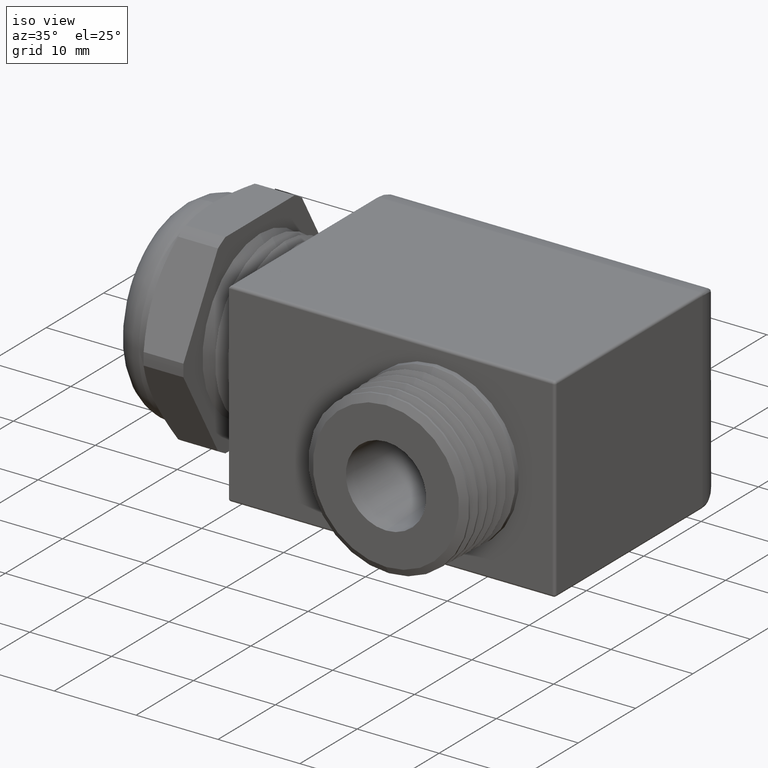
[diagram: clean part render]
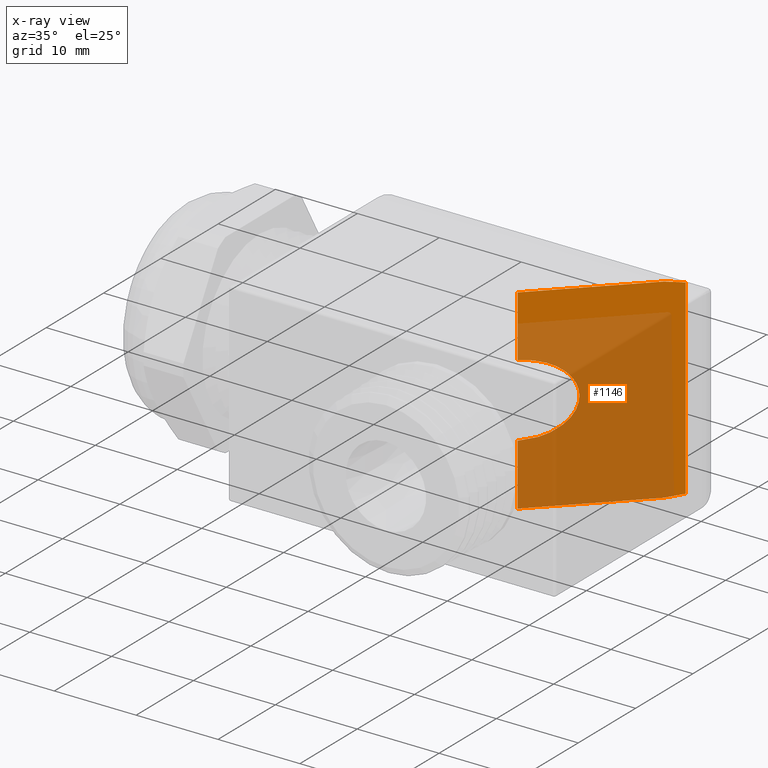
[diagram: x-ray — body ghosted, one internal face saturated and labeled with its STEP entity id]
A machine part, iso view, then the same camera in x-ray: the body is ghosted and one INTERNAL B-rep face — a face not visible from any outside direction — is saturated and labeled: STEP entity #1146.
In plain terms, the highlighted planar face has unit normal (-0.7071, 0.7071, 0).
Its self-contained STEP definition (entity closure, byte-faithful):
#1132 = ORIENTED_EDGE ( 'NONE', *, *, #1133, .T. ) ;
#1133 = EDGE_CURVE ( 'NONE', #1311, #1134, #3577, .T. ) ;
#1134 = VERTEX_POINT ( 'NONE', #3706 ) ;
#1135 = ORIENTED_EDGE ( 'NONE', *, *, #1136, .F. ) ;
#1136 = EDGE_CURVE ( 'NONE', #1137, #1134, #3586, .T. ) ;
#1137 = VERTEX_POINT ( 'NONE', #3588 ) ;
#1138 = ORIENTED_EDGE ( 'NONE', *, *, #1139, .F. ) ;
#1139 = EDGE_CURVE ( 'NONE', #1140, #1137, #3587, .T. ) ;
#1140 = VERTEX_POINT ( 'NONE', #3602 ) ;
#1141 = ORIENTED_EDGE ( 'NONE', *, *, #1142, .F. ) ;
#1142 = EDGE_CURVE ( 'NONE', #1143, #1140, #3599, .T. ) ;
#1143 = VERTEX_POINT ( 'NONE', #3601 ) ;
#1144 = ORIENTED_EDGE ( 'NONE', *, *, #1223, .T. ) ;
#1146 = ADVANCED_FACE ( 'NONE', ( #3590 ), #3589, .T. ) ;
#1147 = EDGE_LOOP ( 'NONE', ( #1148, #1151, #1153, #1132, #1135, #1138, #1141, #1144 ) ) ;
#1148 = ORIENTED_EDGE ( 'NONE', *, *, #1149, .T. ) ;
#1149 = EDGE_CURVE ( 'NONE', #1150, #1196, #3576, .T. ) ;
#1150 = VERTEX_POINT ( 'NONE', #3568 ) ;
#1151 = ORIENTED_EDGE ( 'NONE', *, *, #1152, .T. ) ;
#1152 = EDGE_CURVE ( 'NONE', #1196, #1383, #3566, .T. ) ;
#1153 = ORIENTED_EDGE ( 'NONE', *, *, #1310, .T. ) ;
#1196 = VERTEX_POINT ( 'NONE', #3632 ) ;
#1223 = EDGE_CURVE ( 'NONE', #1143, #1150, #3611, .T. ) ;
#1310 = EDGE_CURVE ( 'NONE', #1383, #1311, #3908, .T. ) ;
#1311 = VERTEX_POINT ( 'NONE', #3904 ) ;
#1383 = VERTEX_POINT ( 'NONE', #4032 ) ;
#3527 = VECTOR ( 'NONE', #3529, 39.37007874015748100 ) ;
#3529 = DIRECTION ( 'NONE',  ( -0.7071067811865512400, -0.7071067811865438000, 0.0000000000000000000 ) ) ;
#3562 = CARTESIAN_POINT ( 'NONE',  ( 0.9679999999999952000, 1.222686989034449200E-017, 0.1749999999999999900 ) ) ;
#3563 = CARTESIAN_POINT ( 'NONE',  ( 1.317999999999998300, 0.3499999999999997000, 0.1749999999999999100 ) ) ;
#3564 = CARTESIAN_POINT ( 'NONE',  ( 1.317999999999998700, 0.3499999999999998100, -0.1749999999999997100 ) ) ;
#3565 = CARTESIAN_POINT ( 'NONE',  ( 0.9679999999999952000, 0.0000000000000000000, -0.1749999999999999900 ) ) ;
#3566 =( BOUNDED_CURVE ( )  B_SPLINE_CURVE ( 3, ( #3565, #3564, #3563, #3562 ),
 .UNSPECIFIED., .F., .T. ) 
 B_SPLINE_CURVE_WITH_KNOTS ( ( 4, 4 ),
 ( 1.570796326794897400, 4.712388980384689700 ),
 .UNSPECIFIED. ) 
 CURVE ( )  GEOMETRIC_REPRESENTATION_ITEM ( )  RATIONAL_B_SPLINE_CURVE ( ( 1.000000000000000000, 0.3333333333333335900, 0.3333333333333335900, 1.000000000000000000 ) ) 
 REPRESENTATION_ITEM ( '' )  );
#3568 = CARTESIAN_POINT ( 'NONE',  ( 0.9679999999999952000, -6.137788176939977500E-018, -0.4700000000000000300 ) ) ;
#3569 = DIRECTION ( 'NONE',  ( 0.0000000000000000000, 0.0000000000000000000, 1.000000000000000000 ) ) ;
#3570 = VECTOR ( 'NONE', #3569, 39.37007874015748100 ) ;
#3571 = CARTESIAN_POINT ( 'NONE',  ( 0.9679999999999952000, 0.0000000000000000000, -0.4703937007874016700 ) ) ;
#3572 = DIRECTION ( 'NONE',  ( -0.7071067811865512400, -0.7071067811865438000, 0.0000000000000000000 ) ) ;
#3573 = DIRECTION ( 'NONE',  ( -0.7071067811865438000, 0.7071067811865512400, 0.0000000000000000000 ) ) ;
#3574 = CARTESIAN_POINT ( 'NONE',  ( 1.443555555555555700, 0.4755555555555555100, -0.4703937007874016700 ) ) ;
#3575 = AXIS2_PLACEMENT_3D ( 'NONE', #3574, #3573, #3572 ) ;
#3576 = LINE ( 'NONE', #3571, #3570 ) ;
#3577 = LINE ( 'NONE', #3709, #3708 ) ;
#3586 =( BOUNDED_CURVE ( )  B_SPLINE_CURVE ( 3, ( #3660, #3659, #3658, #3657 ),
 .UNSPECIFIED., .F., .T. ) 
 B_SPLINE_CURVE_WITH_KNOTS ( ( 4, 4 ),
 ( 1.230959417340774700, 1.570796326794896800 ),
 .UNSPECIFIED. ) 
 CURVE ( )  GEOMETRIC_REPRESENTATION_ITEM ( )  RATIONAL_B_SPLINE_CURVE ( ( 1.000000000000000000, 0.9903990397689925700, 0.9903990397689925700, 1.000000000000000000 ) ) 
 REPRESENTATION_ITEM ( '' )  );
#3587 = LINE ( 'NONE', #3605, #3604 ) ;
#3588 = CARTESIAN_POINT ( 'NONE',  ( 1.443555555555555700, 0.4755555555555555100, 0.4593243544286517200 ) ) ;
#3589 = PLANE ( 'NONE',  #3575 ) ;
#3590 = FACE_OUTER_BOUND ( 'NONE', #1147, .T. ) ;
#3595 = CARTESIAN_POINT ( 'NONE',  ( 1.443555555555555700, 0.4755555555555555100, -0.4593243544286518300 ) ) ;
#3596 = CARTESIAN_POINT ( 'NONE',  ( 1.423522936573932800, 0.4555229365739327200, -0.4664069547920677300 ) ) ;
#3597 = CARTESIAN_POINT ( 'NONE',  ( 1.402581134423580800, 0.4345811344235808200, -0.4700000000000000300 ) ) ;
#3598 = CARTESIAN_POINT ( 'NONE',  ( 1.381333333333332900, 0.4133333333333332200, -0.4700000000000000300 ) ) ;
#3599 =( BOUNDED_CURVE ( )  B_SPLINE_CURVE ( 3, ( #3598, #3597, #3596, #3595 ),
 .UNSPECIFIED., .F., .T. ) 
 B_SPLINE_CURVE_WITH_KNOTS ( ( 4, 4 ),
 ( 4.712388980384689700, 5.052225889838811500 ),
 .UNSPECIFIED. ) 
 CURVE ( )  GEOMETRIC_REPRESENTATION_ITEM ( )  RATIONAL_B_SPLINE_CURVE ( ( 1.000000000000000000, 0.9903990397689925700, 0.9903990397689925700, 1.000000000000000000 ) ) 
 REPRESENTATION_ITEM ( '' )  );
#3601 = CARTESIAN_POINT ( 'NONE',  ( 1.381333333333332900, 0.4133333333333332200, -0.4700000000000000300 ) ) ;
#3602 = CARTESIAN_POINT ( 'NONE',  ( 1.443555555555555700, 0.4755555555555555100, -0.4593243544286518300 ) ) ;
#3603 = DIRECTION ( 'NONE',  ( 0.0000000000000000000, 0.0000000000000000000, 1.000000000000000000 ) ) ;
#3604 = VECTOR ( 'NONE', #3603, 39.37007874015748100 ) ;
#3605 = CARTESIAN_POINT ( 'NONE',  ( 1.443555555555555700, 0.4755555555555555100, -0.4703937007874016700 ) ) ;
#3606 = CARTESIAN_POINT ( 'NONE',  ( 0.9817780020556733400, 0.01377800205567806400, -0.4700000000000000300 ) ) ;
#3611 = LINE ( 'NONE', #3606, #3527 ) ;
#3632 = CARTESIAN_POINT ( 'NONE',  ( 0.9679999999999952000, 0.0000000000000000000, -0.1749999999999999900 ) ) ;
#3657 = CARTESIAN_POINT ( 'NONE',  ( 1.381333333333332900, 0.4133333333333332700, 0.4699999999999999200 ) ) ;
#3658 = CARTESIAN_POINT ( 'NONE',  ( 1.402581134423580800, 0.4345811344235809300, 0.4699999999999999200 ) ) ;
#3659 = CARTESIAN_POINT ( 'NONE',  ( 1.423522936573932800, 0.4555229365739328400, 0.4664069547920675600 ) ) ;
#3660 = CARTESIAN_POINT ( 'NONE',  ( 1.443555555555555700, 0.4755555555555555100, 0.4593243544286517200 ) ) ;
#3706 = CARTESIAN_POINT ( 'NONE',  ( 1.381333333333332900, 0.4133333333333332700, 0.4699999999999999200 ) ) ;
#3707 = DIRECTION ( 'NONE',  ( 0.7071067811865512400, 0.7071067811865438000, 0.0000000000000000000 ) ) ;
#3708 = VECTOR ( 'NONE', #3707, 39.37007874015748100 ) ;
#3709 = CARTESIAN_POINT ( 'NONE',  ( 1.218836982058541200, 0.2508369820585433200, 0.4699999999999999200 ) ) ;
#3904 = CARTESIAN_POINT ( 'NONE',  ( 0.9679999999999952000, -6.137788176939977500E-018, 0.4699999999999999200 ) ) ;
#3905 = DIRECTION ( 'NONE',  ( 0.0000000000000000000, 0.0000000000000000000, 1.000000000000000000 ) ) ;
#3906 = VECTOR ( 'NONE', #3905, 39.37007874015748100 ) ;
#3907 = CARTESIAN_POINT ( 'NONE',  ( 0.9679999999999952000, 0.0000000000000000000, -0.4703937007874016700 ) ) ;
#3908 = LINE ( 'NONE', #3907, #3906 ) ;
#4032 = CARTESIAN_POINT ( 'NONE',  ( 0.9679999999999952000, 1.222686989034449200E-017, 0.1749999999999999900 ) ) ;